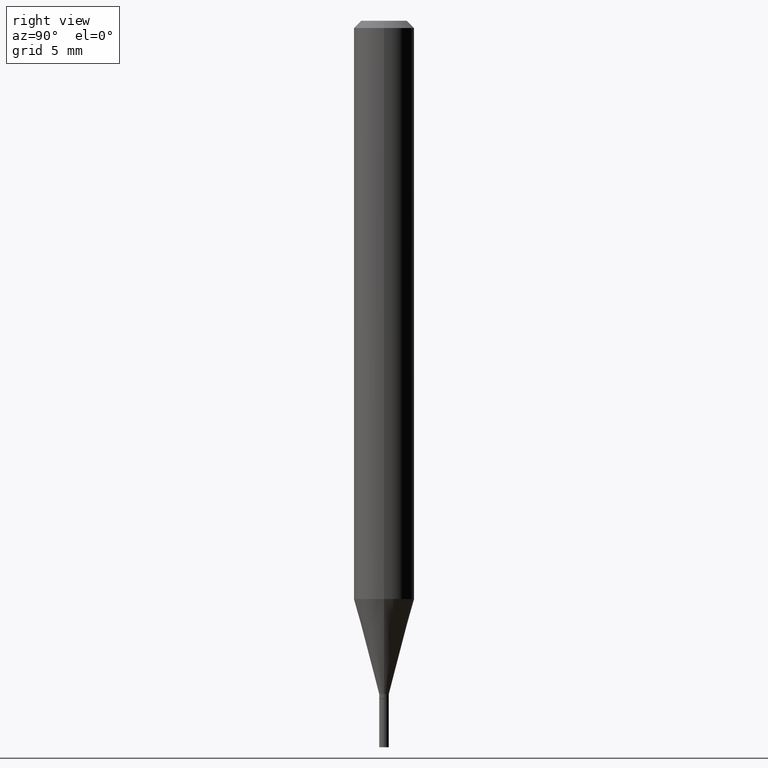
[diagram: clean part render]
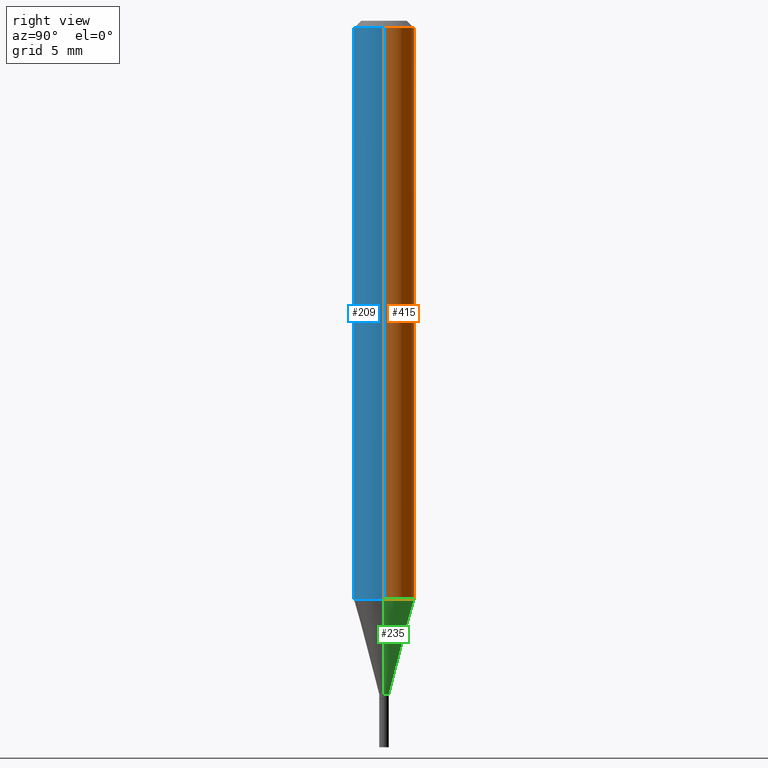
[diagram: same view with three faces highlighted in distinct colors, each labeled with its STEP entity id]
A machine part, right view with three faces highlighted in distinct colors.
Their STEP definitions:

[orange] entity #415 — the highlighted cylindrical surface (edge-blend (fillet) strip) has radius 1.5875 mm, axis along (-0, 0, 1).
#7 = CARTESIAN_POINT ( 'NONE',  ( -0.06250000000000000000, 4.440892098500626162E-16, -3.074334431409316114E-30 ) ) ;
#30 = CARTESIAN_POINT ( 'NONE',  ( 0.06250000000000000000, -4.364351673553916694E-16, 3.047610484872459871E-30 ) ) ;
#35 = ORIENTED_EDGE ( 'NONE', *, *, #170, .F. ) ;
#40 = VECTOR ( 'NONE', #429, 39.37007874015748143 ) ;
#43 = CARTESIAN_POINT ( 'NONE',  ( 2.920054414364433341E-29, -4.169063809104307655E-15, -1.194067332602633869 ) ) ;
#46 = LINE ( 'NONE', #7, #397 ) ;
#54 = ORIENTED_EDGE ( 'NONE', *, *, #101, .F. ) ;
#78 = CIRCLE ( 'NONE', #462, 0.06250000000000000000 ) ;
#101 = EDGE_CURVE ( 'NONE', #348, #112, #381, .T. ) ;
#111 = DIRECTION ( 'NONE',  ( -2.445468806185136597E-29, 3.491481338843145583E-15, 1.000000000000000000 ) ) ;
#112 = VERTEX_POINT ( 'NONE', #357 ) ;
#115 = AXIS2_PLACEMENT_3D ( 'NONE', #386, #231, #346 ) ;
#158 = ORIENTED_EDGE ( 'NONE', *, *, #401, .T. ) ;
#169 = ORIENTED_EDGE ( 'NONE', *, *, #330, .T. ) ;
#170 = EDGE_CURVE ( 'NONE', #225, #348, #242, .T. ) ;
#181 = CARTESIAN_POINT ( 'NONE',  ( 0.06250000000000001388, -4.605498976459700114E-15, -1.194067332602633869 ) ) ;
#223 = EDGE_LOOP ( 'NONE', ( #169, #158, #54, #35 ) ) ;
#225 = VERTEX_POINT ( 'NONE', #181 ) ;
#231 = DIRECTION ( 'NONE',  ( -2.445468806185136597E-29, 3.491481338843145583E-15, 1.000000000000000000 ) ) ;
#242 = LINE ( 'NONE', #30, #40 ) ;
#278 = DIRECTION ( 'NONE',  ( -2.445468806185136597E-29, 3.491481338843145583E-15, 1.000000000000000000 ) ) ;
#289 = DIRECTION ( 'NONE',  ( -2.445468806185136877E-29, 3.491481338843145188E-15, 1.000000000000000000 ) ) ;
#327 = DIRECTION ( 'NONE',  ( 1.000000000000000000, -6.982962677686270655E-15, 0.000000000000000000 ) ) ;
#330 = EDGE_CURVE ( 'NONE', #225, #446, #78, .T. ) ;
#346 = DIRECTION ( 'NONE',  ( 1.000000000000000000, -6.982962677686266711E-15, 4.876176775795935793E-29 ) ) ;
#348 = VERTEX_POINT ( 'NONE', #404 ) ;
#357 = CARTESIAN_POINT ( 'NONE',  ( -0.06250000000000000000, -1.666628804743414948E-15, -0.01499999999999999944 ) ) ;
#376 = CYLINDRICAL_SURFACE ( 'NONE', #115, 0.06250000000000000000 ) ;
#381 = CIRCLE ( 'NONE', #411, 0.06250000000000000000 ) ;
#383 = FACE_OUTER_BOUND ( 'NONE', #223, .T. ) ;
#386 = CARTESIAN_POINT ( 'NONE',  ( 0.000000000000000000, 0.000000000000000000, 0.000000000000000000 ) ) ;
#397 = VECTOR ( 'NONE', #289, 39.37007874015748143 ) ;
#401 = EDGE_CURVE ( 'NONE', #446, #112, #46, .T. ) ;
#404 = CARTESIAN_POINT ( 'NONE',  ( 0.06250000000000000000, -4.888073874380388472E-16, -0.01499999999999999944 ) ) ;
#411 = AXIS2_PLACEMENT_3D ( 'NONE', #464, #278, #460 ) ;
#415 = ADVANCED_FACE ( 'NONE', ( #383 ), #376, .T. ) ;
#429 = DIRECTION ( 'NONE',  ( -2.445468806185136877E-29, 3.491481338843145188E-15, 1.000000000000000000 ) ) ;
#446 = VERTEX_POINT ( 'NONE', #450 ) ;
#450 = CARTESIAN_POINT ( 'NONE',  ( -0.06250000000000001388, -3.724974599254245039E-15, -1.194067332602633869 ) ) ;
#460 = DIRECTION ( 'NONE',  ( 1.000000000000000000, -6.982962677686266711E-15, 0.000000000000000000 ) ) ;
#462 = AXIS2_PLACEMENT_3D ( 'NONE', #43, #111, #327 ) ;
#464 = CARTESIAN_POINT ( 'NONE',  ( 3.668203209277705088E-31, -5.237222008264718399E-17, -0.01499999999999999944 ) ) ;

[blue] entity #209 — the highlighted cylindrical surface (edge-blend (fillet) strip) has radius 1.5875 mm, axis along (-0, 0, 1).
#7 = CARTESIAN_POINT ( 'NONE',  ( -0.06250000000000000000, 4.440892098500626162E-16, -3.074334431409316114E-30 ) ) ;
#30 = CARTESIAN_POINT ( 'NONE',  ( 0.06250000000000000000, -4.364351673553916694E-16, 3.047610484872459871E-30 ) ) ;
#38 = EDGE_CURVE ( 'NONE', #112, #348, #208, .T. ) ;
#40 = VECTOR ( 'NONE', #429, 39.37007874015748143 ) ;
#42 = EDGE_LOOP ( 'NONE', ( #294, #410, #53, #44 ) ) ;
#44 = ORIENTED_EDGE ( 'NONE', *, *, #38, .F. ) ;
#46 = LINE ( 'NONE', #7, #397 ) ;
#53 = ORIENTED_EDGE ( 'NONE', *, *, #170, .T. ) ;
#68 = CARTESIAN_POINT ( 'NONE',  ( 0.000000000000000000, 0.000000000000000000, 0.000000000000000000 ) ) ;
#103 = CYLINDRICAL_SURFACE ( 'NONE', #162, 0.06250000000000000000 ) ;
#112 = VERTEX_POINT ( 'NONE', #357 ) ;
#162 = AXIS2_PLACEMENT_3D ( 'NONE', #68, #461, #245 ) ;
#170 = EDGE_CURVE ( 'NONE', #225, #348, #242, .T. ) ;
#181 = CARTESIAN_POINT ( 'NONE',  ( 0.06250000000000001388, -4.605498976459700114E-15, -1.194067332602633869 ) ) ;
#208 = CIRCLE ( 'NONE', #285, 0.06250000000000000000 ) ;
#209 = ADVANCED_FACE ( 'NONE', ( #240 ), #103, .T. ) ;
#219 = CARTESIAN_POINT ( 'NONE',  ( 2.920054414364433341E-29, -4.169063809104307655E-15, -1.194067332602633869 ) ) ;
#225 = VERTEX_POINT ( 'NONE', #181 ) ;
#240 = FACE_OUTER_BOUND ( 'NONE', #42, .T. ) ;
#242 = LINE ( 'NONE', #30, #40 ) ;
#245 = DIRECTION ( 'NONE',  ( 1.000000000000000000, -6.982962677686266711E-15, 4.876176775795935793E-29 ) ) ;
#255 = CIRCLE ( 'NONE', #440, 0.06250000000000000000 ) ;
#258 = DIRECTION ( 'NONE',  ( 1.000000000000000000, -6.982962677686270655E-15, 0.000000000000000000 ) ) ;
#272 = CARTESIAN_POINT ( 'NONE',  ( 3.668203209277705088E-31, -5.237222008264718399E-17, -0.01499999999999999944 ) ) ;
#285 = AXIS2_PLACEMENT_3D ( 'NONE', #272, #385, #333 ) ;
#289 = DIRECTION ( 'NONE',  ( -2.445468806185136877E-29, 3.491481338843145188E-15, 1.000000000000000000 ) ) ;
#294 = ORIENTED_EDGE ( 'NONE', *, *, #401, .F. ) ;
#296 = DIRECTION ( 'NONE',  ( -2.445468806185136597E-29, 3.491481338843145583E-15, 1.000000000000000000 ) ) ;
#333 = DIRECTION ( 'NONE',  ( 1.000000000000000000, -6.982962677686266711E-15, 0.000000000000000000 ) ) ;
#348 = VERTEX_POINT ( 'NONE', #404 ) ;
#349 = EDGE_CURVE ( 'NONE', #446, #225, #255, .T. ) ;
#357 = CARTESIAN_POINT ( 'NONE',  ( -0.06250000000000000000, -1.666628804743414948E-15, -0.01499999999999999944 ) ) ;
#385 = DIRECTION ( 'NONE',  ( -2.445468806185136597E-29, 3.491481338843145583E-15, 1.000000000000000000 ) ) ;
#397 = VECTOR ( 'NONE', #289, 39.37007874015748143 ) ;
#401 = EDGE_CURVE ( 'NONE', #446, #112, #46, .T. ) ;
#404 = CARTESIAN_POINT ( 'NONE',  ( 0.06250000000000000000, -4.888073874380388472E-16, -0.01499999999999999944 ) ) ;
#410 = ORIENTED_EDGE ( 'NONE', *, *, #349, .T. ) ;
#429 = DIRECTION ( 'NONE',  ( -2.445468806185136877E-29, 3.491481338843145188E-15, 1.000000000000000000 ) ) ;
#440 = AXIS2_PLACEMENT_3D ( 'NONE', #219, #296, #258 ) ;
#446 = VERTEX_POINT ( 'NONE', #450 ) ;
#450 = CARTESIAN_POINT ( 'NONE',  ( -0.06250000000000001388, -3.724974599254245039E-15, -1.194067332602633869 ) ) ;
#461 = DIRECTION ( 'NONE',  ( -2.445468806185136597E-29, 3.491481338843145583E-15, 1.000000000000000000 ) ) ;

[green] entity #235 — the highlighted conical surface has half-angle 15 deg.
#10 = LINE ( 'NONE', #443, #328 ) ;
#18 = EDGE_LOOP ( 'NONE', ( #455, #130, #423, #182 ) ) ;
#19 = CONICAL_SURFACE ( 'NONE', #28, 0.009999999999999918676, 0.2617993877991495744 ) ;
#28 = AXIS2_PLACEMENT_3D ( 'NONE', #396, #71, #212 ) ;
#43 = CARTESIAN_POINT ( 'NONE',  ( 2.920054414364433341E-29, -4.169063809104307655E-15, -1.194067332602633869 ) ) ;
#71 = DIRECTION ( 'NONE',  ( -2.445468806185136597E-29, 3.491481338843145583E-15, 1.000000000000000000 ) ) ;
#75 = CARTESIAN_POINT ( 'NONE',  ( 0.009999999999999918676, -4.922988687768835701E-15, -1.390000000000000124 ) ) ;
#78 = CIRCLE ( 'NONE', #462, 0.06250000000000000000 ) ;
#111 = DIRECTION ( 'NONE',  ( -2.445468806185136597E-29, 3.491481338843145583E-15, 1.000000000000000000 ) ) ;
#118 = CARTESIAN_POINT ( 'NONE',  ( 3.399201640597340139E-29, -4.853159060991973192E-15, -1.390000000000000124 ) ) ;
#130 = ORIENTED_EDGE ( 'NONE', *, *, #266, .T. ) ;
#142 = CIRCLE ( 'NONE', #391, 0.009999999999999918676 ) ;
#146 = CARTESIAN_POINT ( 'NONE',  ( -0.009999999999999918676, -4.253539693335104469E-15, -1.390000000000000124 ) ) ;
#167 = VERTEX_POINT ( 'NONE', #146 ) ;
#181 = CARTESIAN_POINT ( 'NONE',  ( 0.06250000000000001388, -4.605498976459700114E-15, -1.194067332602633869 ) ) ;
#182 = ORIENTED_EDGE ( 'NONE', *, *, #433, .F. ) ;
#212 = DIRECTION ( 'NONE',  ( 1.000000000000000000, -6.982962677686292743E-15, 0.000000000000000000 ) ) ;
#225 = VERTEX_POINT ( 'NONE', #181 ) ;
#233 = CARTESIAN_POINT ( 'NONE',  ( 0.009999999999999918676, -4.922988687768835701E-15, -1.390000000000000124 ) ) ;
#235 = ADVANCED_FACE ( 'NONE', ( #430 ), #19, .T. ) ;
#253 = DIRECTION ( 'NONE',  ( -2.445468806185136597E-29, 3.491481338843145583E-15, 1.000000000000000000 ) ) ;
#264 = LINE ( 'NONE', #233, #364 ) ;
#266 = EDGE_CURVE ( 'NONE', #167, #446, #10, .T. ) ;
#273 = DIRECTION ( 'NONE',  ( 0.2588190451025209060, 1.565188264969625123E-15, 0.9659258262890682012 ) ) ;
#295 = EDGE_CURVE ( 'NONE', #359, #167, #142, .T. ) ;
#320 = DIRECTION ( 'NONE',  ( -0.2588190451025209060, 5.211531920934547097E-15, 0.9659258262890682012 ) ) ;
#327 = DIRECTION ( 'NONE',  ( 1.000000000000000000, -6.982962677686270655E-15, 0.000000000000000000 ) ) ;
#328 = VECTOR ( 'NONE', #320, 39.37007874015748143 ) ;
#330 = EDGE_CURVE ( 'NONE', #225, #446, #78, .T. ) ;
#359 = VERTEX_POINT ( 'NONE', #75 ) ;
#364 = VECTOR ( 'NONE', #273, 39.37007874015748143 ) ;
#391 = AXIS2_PLACEMENT_3D ( 'NONE', #118, #253, #408 ) ;
#396 = CARTESIAN_POINT ( 'NONE',  ( 3.399201640597340139E-29, -4.853159060991973192E-15, -1.390000000000000124 ) ) ;
#408 = DIRECTION ( 'NONE',  ( 1.000000000000000000, -6.982962677686292743E-15, 0.000000000000000000 ) ) ;
#423 = ORIENTED_EDGE ( 'NONE', *, *, #330, .F. ) ;
#430 = FACE_OUTER_BOUND ( 'NONE', #18, .T. ) ;
#433 = EDGE_CURVE ( 'NONE', #359, #225, #264, .T. ) ;
#443 = CARTESIAN_POINT ( 'NONE',  ( -0.009999999999999918676, -4.782104787415963899E-15, -1.390000000000000124 ) ) ;
#446 = VERTEX_POINT ( 'NONE', #450 ) ;
#450 = CARTESIAN_POINT ( 'NONE',  ( -0.06250000000000001388, -3.724974599254245039E-15, -1.194067332602633869 ) ) ;
#455 = ORIENTED_EDGE ( 'NONE', *, *, #295, .T. ) ;
#462 = AXIS2_PLACEMENT_3D ( 'NONE', #43, #111, #327 ) ;